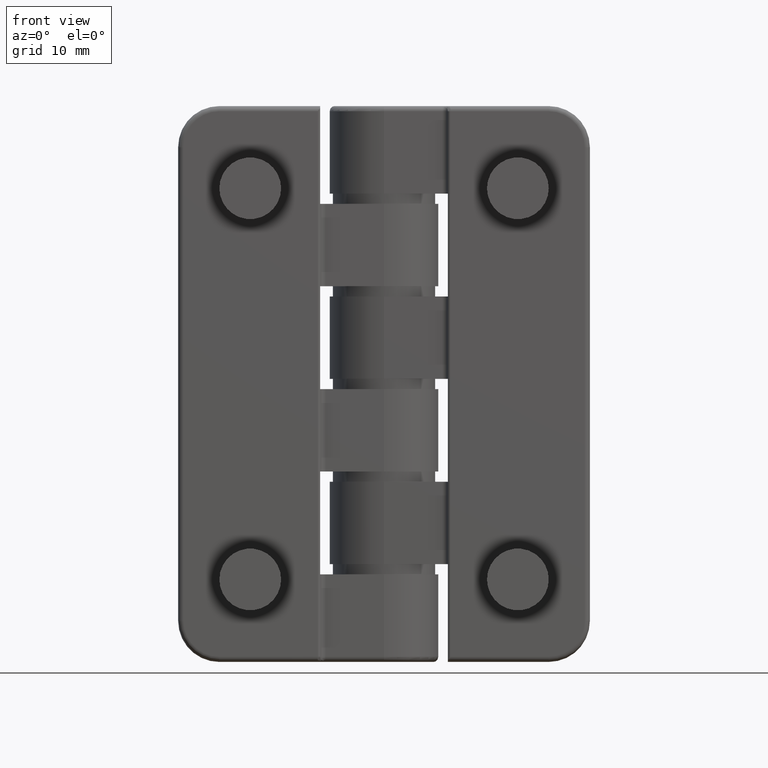
[diagram: clean part render]
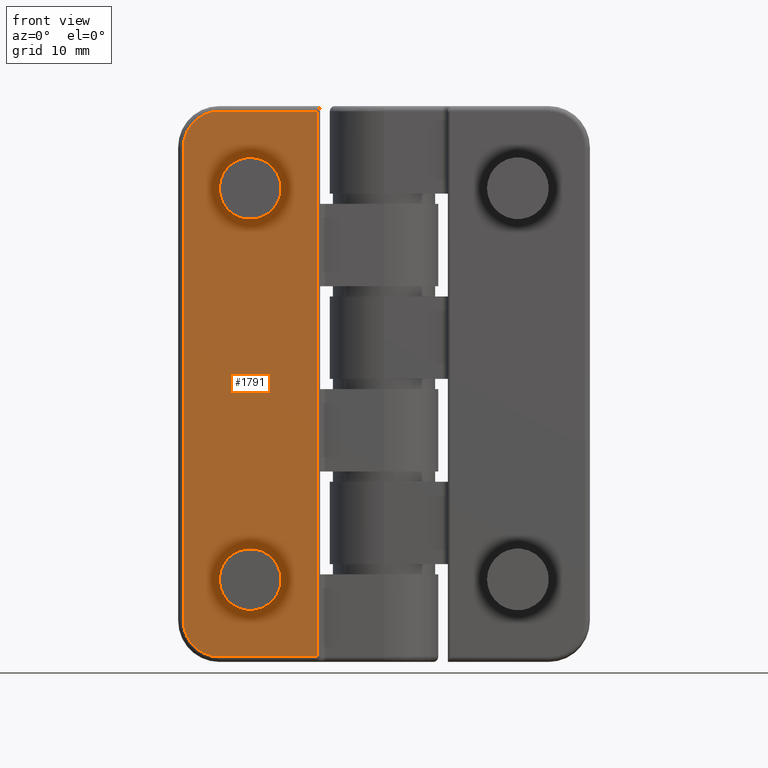
[diagram: same view with one face highlighted and labeled with its STEP entity id]
A machine part, front view. The second image highlights one B-rep face of the part: STEP entity #1791.
In plain terms, the highlighted planar face has unit normal (0, -1, -0).
Its self-contained STEP definition (entity closure, byte-faithful):
#110=LINE('',#3079,#216);
#117=LINE('',#3207,#223);
#118=LINE('',#3211,#224);
#119=LINE('',#3214,#225);
#216=VECTOR('',#2388,53.);
#223=VECTOR('',#2411,9.55838015129044);
#224=VECTOR('',#2414,46.);
#225=VECTOR('',#2417,9.55838015129044);
#301=PLANE('',#1983);
#347=FACE_BOUND('',#573,.T.);
#348=FACE_BOUND('',#574,.T.);
#435=FACE_OUTER_BOUND('',#572,.T.);
#572=EDGE_LOOP('',(#1448,#1449,#1450,#1451,#1452,#1453));
#573=EDGE_LOOP('',(#1454));
#574=EDGE_LOOP('',(#1455));
#722=CIRCLE('',#1969,3.);
#724=CIRCLE('',#1973,3.);
#732=CIRCLE('',#1984,3.5);
#733=CIRCLE('',#1985,3.5);
#867=VERTEX_POINT('',#3058);
#869=VERTEX_POINT('',#3064);
#871=VERTEX_POINT('',#3069);
#872=VERTEX_POINT('',#3078);
#887=VERTEX_POINT('',#3206);
#888=VERTEX_POINT('',#3208);
#889=VERTEX_POINT('',#3210);
#890=VERTEX_POINT('',#3212);
#1071=EDGE_CURVE('',#867,#867,#722,.T.);
#1073=EDGE_CURVE('',#869,#869,#724,.T.);
#1075=EDGE_CURVE('',#871,#872,#110,.T.);
#1093=EDGE_CURVE('',#887,#871,#117,.T.);
#1094=EDGE_CURVE('',#888,#887,#732,.T.);
#1095=EDGE_CURVE('',#889,#888,#118,.T.);
#1096=EDGE_CURVE('',#890,#889,#733,.T.);
#1097=EDGE_CURVE('',#872,#890,#119,.T.);
#1448=ORIENTED_EDGE('',*,*,#1075,.F.);
#1449=ORIENTED_EDGE('',*,*,#1093,.F.);
#1450=ORIENTED_EDGE('',*,*,#1094,.F.);
#1451=ORIENTED_EDGE('',*,*,#1095,.F.);
#1452=ORIENTED_EDGE('',*,*,#1096,.F.);
#1453=ORIENTED_EDGE('',*,*,#1097,.F.);
#1454=ORIENTED_EDGE('',*,*,#1071,.T.);
#1455=ORIENTED_EDGE('',*,*,#1073,.T.);
#1791=ADVANCED_FACE('',(#435,#347,#348),#301,.T.);
#1969=AXIS2_PLACEMENT_3D('',#3059,#2374,#2375);
#1973=AXIS2_PLACEMENT_3D('',#3065,#2382,#2383);
#1983=AXIS2_PLACEMENT_3D('',#3205,#2409,#2410);
#1984=AXIS2_PLACEMENT_3D('',#3209,#2412,#2413);
#1985=AXIS2_PLACEMENT_3D('',#3213,#2415,#2416);
#2374=DIRECTION('center_axis',(-1.4078915167348E-16,1.,0.));
#2375=DIRECTION('ref_axis',(-1.,-1.85037170770859E-16,4.82705662880503E-17));
#2382=DIRECTION('center_axis',(-1.4078915167348E-16,1.,0.));
#2383=DIRECTION('ref_axis',(-1.,-1.85037170770859E-16,4.82705662880503E-17));
#2388=DIRECTION('',(0.,0.,1.));
#2409=DIRECTION('center_axis',(1.4078915167348E-16,-1.,0.));
#2410=DIRECTION('ref_axis',(1.,1.4078915167348E-16,0.));
#2411=DIRECTION('',(-1.,-1.4078915167348E-16,0.));
#2412=DIRECTION('center_axis',(-1.4078915167348E-16,1.,0.));
#2413=DIRECTION('ref_axis',(0.707106781186547,9.95529638658191E-17,-0.707106781186547));
#2414=DIRECTION('',(0.,0.,-1.));
#2415=DIRECTION('center_axis',(-1.4078915167348E-16,1.,0.));
#2416=DIRECTION('ref_axis',(0.707106781186547,9.95529638658191E-17,0.707106781186547));
#2417=DIRECTION('',(1.,1.4078915167348E-16,0.));
#3058=CARTESIAN_POINT('',(16.,1.3797336864001E-15,19.));
#3059=CARTESIAN_POINT('Origin',(13.,1.25825276124184E-15,19.));
#3064=CARTESIAN_POINT('',(16.,1.3797336864001E-15,-19.));
#3065=CARTESIAN_POINT('Origin',(13.,1.25825276124184E-15,-19.));
#3069=CARTESIAN_POINT('',(6.44161984870956,4.40738215039714E-17,-26.5));
#3078=CARTESIAN_POINT('',(6.44161984870956,4.40738215039714E-17,26.5));
#3079=CARTESIAN_POINT('',(6.44161984870956,3.46944695195361E-17,0.));
#3205=CARTESIAN_POINT('Origin',(6.2,0.,0.));
#3206=CARTESIAN_POINT('',(16.,1.38777878078145E-15,-26.5));
#3207=CARTESIAN_POINT('',(8.1,2.77555756156289E-16,-26.5));
#3208=CARTESIAN_POINT('',(19.5,1.87350135405495E-15,-23.));
#3209=CARTESIAN_POINT('Origin',(16.,1.38777878078145E-15,-23.));
#3210=CARTESIAN_POINT('',(19.5,1.88054081163863E-15,23.));
#3211=CARTESIAN_POINT('',(19.5,1.87350135405495E-15,0.));
#3212=CARTESIAN_POINT('',(16.,1.38979005437678E-15,26.5));
#3213=CARTESIAN_POINT('Origin',(16.,1.38777878078145E-15,23.));
#3214=CARTESIAN_POINT('',(8.1,2.77555756156289E-16,26.5));